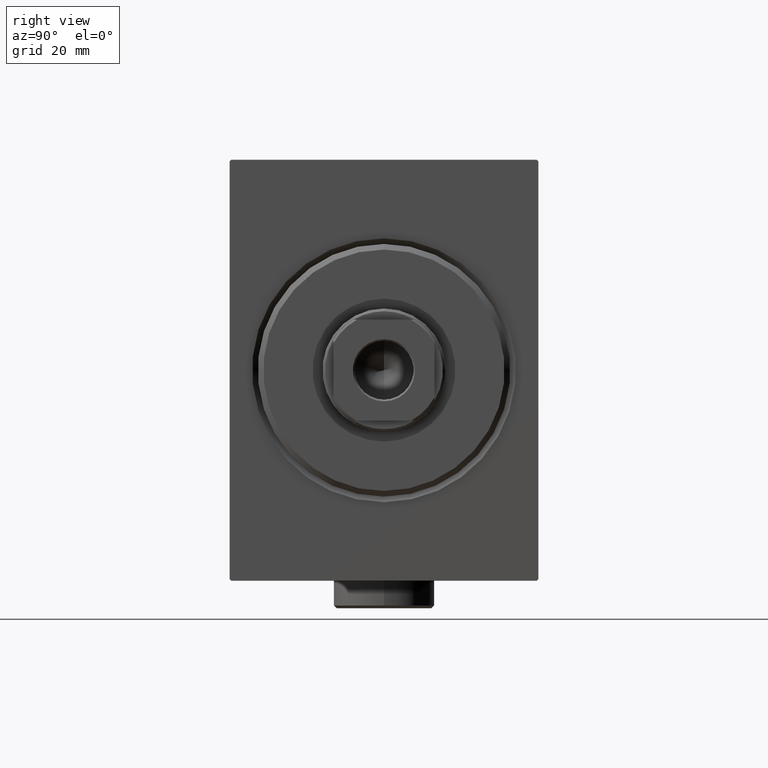
[diagram: clean part render]
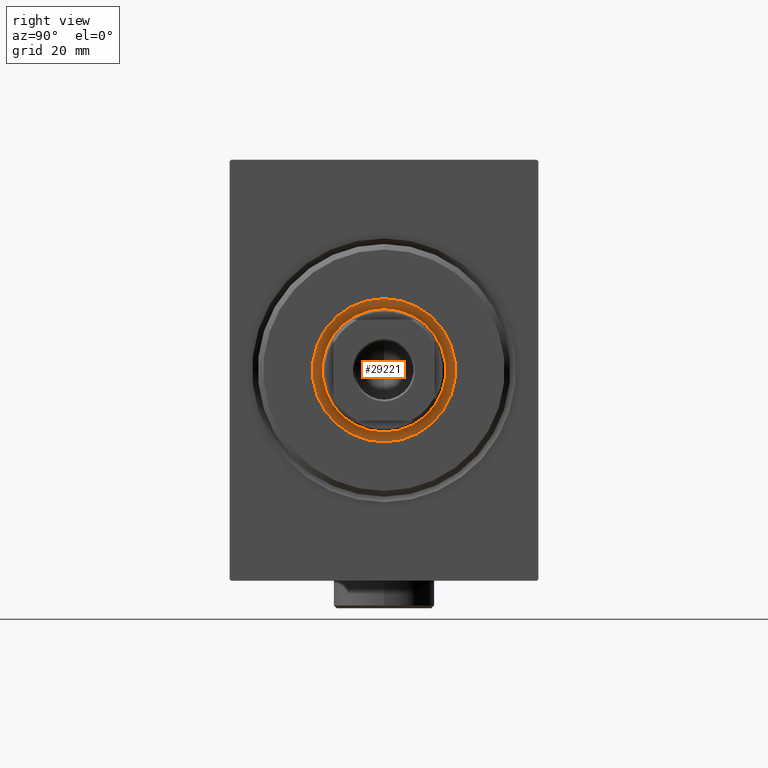
[diagram: same view with one face highlighted and labeled with its STEP entity id]
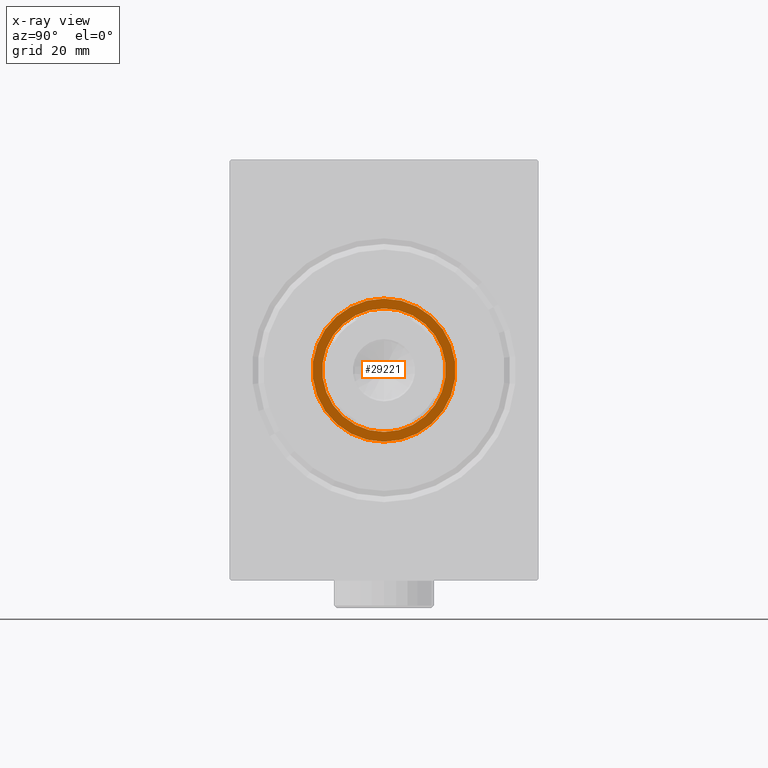
[diagram: x-ray of the same camera — body ghosted, the highlighted face saturated]
A machine part, right view. The second image highlights one B-rep face of the part: STEP entity #29221.
The next image is the same camera in x-ray: the body ghosted, the highlighted face saturated — about 0% of this face is hidden behind the body in this view.
In plain terms, the highlighted planar face has unit normal (1, 0, 0).
Its self-contained STEP definition (entity closure, byte-faithful):
#34 = DIRECTION ( 'NONE',  ( 1.000000000000000000, 0.000000000000000000, 0.000000000000000000 ) ) ;
#318 = FACE_OUTER_BOUND ( 'NONE', #21374, .T. ) ;
#581 = CARTESIAN_POINT ( 'NONE',  ( 1.500000000000000000, 0.000000000000000000, 0.000000000000000000 ) ) ;
#1010 = DIRECTION ( 'NONE',  ( 0.000000000000000000, 0.000000000000000000, -1.000000000000000000 ) ) ;
#2594 = AXIS2_PLACEMENT_3D ( 'NONE', #2598, #26848, #26628 ) ;
#2598 = CARTESIAN_POINT ( 'NONE',  ( 1.500000000000000000, 0.000000000000000000, 0.000000000000000000 ) ) ;
#3761 = EDGE_LOOP ( 'NONE', ( #27565, #42235 ) ) ;
#4121 = CIRCLE ( 'NONE', #10517, 11.00000000000000000 ) ;
#5962 = VERTEX_POINT ( 'NONE', #17583 ) ;
#8327 = CARTESIAN_POINT ( 'NONE',  ( 1.500000000000000000, 0.000000000000000000, 12.75000000000000000 ) ) ;
#10517 = AXIS2_PLACEMENT_3D ( 'NONE', #21888, #34, #29657 ) ;
#13877 = CARTESIAN_POINT ( 'NONE',  ( 1.500000000000000000, 0.000000000000000000, 0.000000000000000000 ) ) ;
#14141 = DIRECTION ( 'NONE',  ( 1.000000000000000000, 0.000000000000000000, 0.000000000000000000 ) ) ;
#14525 = CIRCLE ( 'NONE', #39384, 11.00000000000000000 ) ;
#16559 = VERTEX_POINT ( 'NONE', #8327 ) ;
#16962 = CARTESIAN_POINT ( 'NONE',  ( 1.499999999999999556, 0.000000000000000000, -11.00000000000000000 ) ) ;
#17583 = CARTESIAN_POINT ( 'NONE',  ( 1.500000000000000000, 1.561424668912874914E-15, -12.75000000000000000 ) ) ;
#17604 = EDGE_CURVE ( 'NONE', #22220, #25589, #14525, .T. ) ;
#21374 = EDGE_LOOP ( 'NONE', ( #31902, #36413 ) ) ;
#21446 = DIRECTION ( 'NONE',  ( 1.000000000000000000, 0.000000000000000000, 0.000000000000000000 ) ) ;
#21785 = CIRCLE ( 'NONE', #2594, 12.75000000000000000 ) ;
#21888 = CARTESIAN_POINT ( 'NONE',  ( 1.499999999999999556, 0.000000000000000000, 0.000000000000000000 ) ) ;
#22220 = VERTEX_POINT ( 'NONE', #24742 ) ;
#24742 = CARTESIAN_POINT ( 'NONE',  ( 1.499999999999999556, 1.347111479062088405E-15, 11.00000000000000000 ) ) ;
#25589 = VERTEX_POINT ( 'NONE', #16962 ) ;
#26628 = DIRECTION ( 'NONE',  ( 0.000000000000000000, 0.000000000000000000, -1.000000000000000000 ) ) ;
#26827 = AXIS2_PLACEMENT_3D ( 'NONE', #581, #14141, #1010 ) ;
#26848 = DIRECTION ( 'NONE',  ( 1.000000000000000000, 0.000000000000000000, 0.000000000000000000 ) ) ;
#27145 = DIRECTION ( 'NONE',  ( 0.000000000000000000, 0.000000000000000000, -1.000000000000000000 ) ) ;
#27565 = ORIENTED_EDGE ( 'NONE', *, *, #33845, .F. ) ;
#28026 = EDGE_CURVE ( 'NONE', #5962, #16559, #34604, .T. ) ;
#29221 = ADVANCED_FACE ( 'NONE', ( #40993, #318 ), #41644, .T. ) ;
#29657 = DIRECTION ( 'NONE',  ( 0.000000000000000000, 0.000000000000000000, -1.000000000000000000 ) ) ;
#31902 = ORIENTED_EDGE ( 'NONE', *, *, #43622, .T. ) ;
#33845 = EDGE_CURVE ( 'NONE', #25589, #22220, #4121, .T. ) ;
#34604 = CIRCLE ( 'NONE', #26827, 12.75000000000000000 ) ;
#36413 = ORIENTED_EDGE ( 'NONE', *, *, #28026, .T. ) ;
#37333 = CARTESIAN_POINT ( 'NONE',  ( 1.499999999999999556, 0.000000000000000000, 0.000000000000000000 ) ) ;
#38791 = AXIS2_PLACEMENT_3D ( 'NONE', #13877, #21446, #41873 ) ;
#39384 = AXIS2_PLACEMENT_3D ( 'NONE', #37333, #43354, #27145 ) ;
#40993 = FACE_BOUND ( 'NONE', #3761, .T. ) ;
#41644 = PLANE ( 'NONE',  #38791 ) ;
#41873 = DIRECTION ( 'NONE',  ( 0.000000000000000000, 0.000000000000000000, -1.000000000000000000 ) ) ;
#42235 = ORIENTED_EDGE ( 'NONE', *, *, #17604, .F. ) ;
#43354 = DIRECTION ( 'NONE',  ( 1.000000000000000000, 0.000000000000000000, 0.000000000000000000 ) ) ;
#43622 = EDGE_CURVE ( 'NONE', #16559, #5962, #21785, .T. ) ;